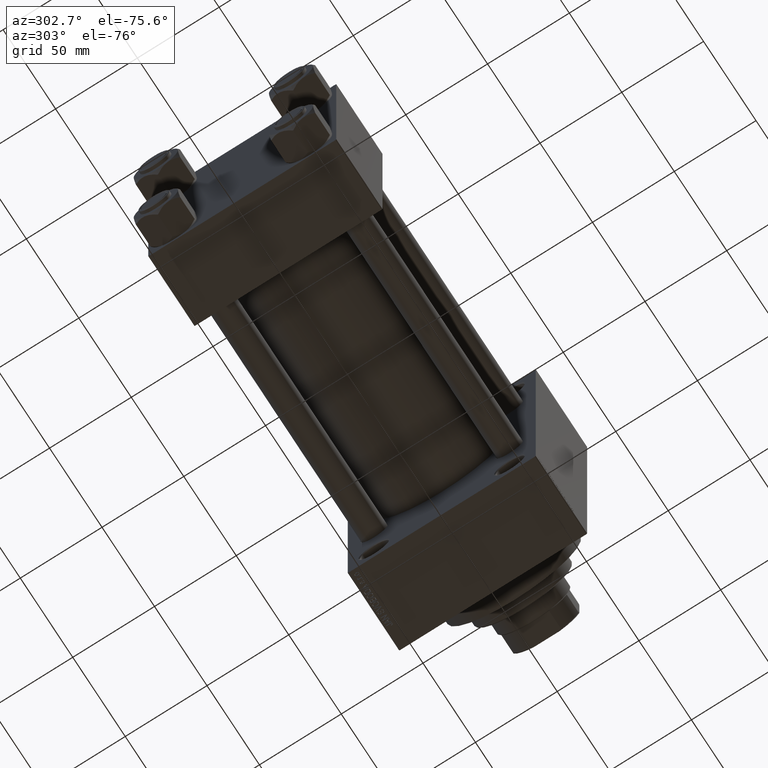
[diagram: clean part render]
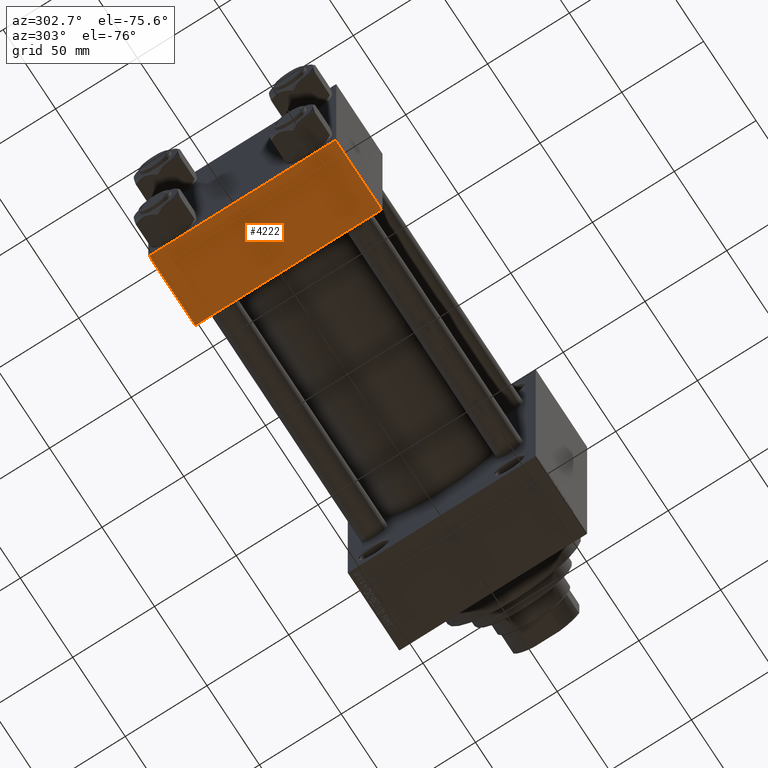
[diagram: same view with one face highlighted and labeled with its STEP entity id]
A machine part, auxiliary view. The second image highlights one B-rep face of the part: STEP entity #4222.
In plain terms, the highlighted planar face has unit normal (0, 0, -1).
Its self-contained STEP definition (entity closure, byte-faithful):
#305 = CARTESIAN_POINT ( 'NONE',  ( 0.000000000000000000, 57.50000000000000000, -57.49999999999999289 ) ) ;
#706 = ORIENTED_EDGE ( 'NONE', *, *, #9668, .T. ) ;
#1290 = VECTOR ( 'NONE', #2628, 1000.000000000000000 ) ;
#1948 = VERTEX_POINT ( 'NONE', #18695 ) ;
#2035 = LINE ( 'NONE', #27360, #14185 ) ;
#2628 = DIRECTION ( 'NONE',  ( -1.000000000000000000, 0.000000000000000000, 0.000000000000000000 ) ) ;
#2818 = CARTESIAN_POINT ( 'NONE',  ( 44.00000000000000000, 57.50000000000000000, -57.49999999999999289 ) ) ;
#4222 = ADVANCED_FACE ( 'NONE', ( #17298 ), #21153, .T. ) ;
#4307 = EDGE_LOOP ( 'NONE', ( #28987, #706, #12763, #26280 ) ) ;
#9144 = LINE ( 'NONE', #23844, #1290 ) ;
#9668 = EDGE_CURVE ( 'NONE', #1948, #36348, #39208, .T. ) ;
#12763 = ORIENTED_EDGE ( 'NONE', *, *, #16301, .T. ) ;
#14185 = VECTOR ( 'NONE', #24703, 1000.000000000000000 ) ;
#15013 = DIRECTION ( 'NONE',  ( 0.000000000000000000, -1.000000000000000000, -1.206764157201257291E-16 ) ) ;
#16301 = EDGE_CURVE ( 'NONE', #36348, #39387, #2035, .T. ) ;
#17298 = FACE_OUTER_BOUND ( 'NONE', #4307, .T. ) ;
#17527 = DIRECTION ( 'NONE',  ( 0.000000000000000000, 1.000000000000000000, 1.206764157201257291E-16 ) ) ;
#18452 = CARTESIAN_POINT ( 'NONE',  ( 44.00000000000000000, -57.00000000000001421, -57.50000000000000711 ) ) ;
#18695 = CARTESIAN_POINT ( 'NONE',  ( 0.000000000000000000, 57.00000000000002842, -57.49999999999999289 ) ) ;
#21153 = PLANE ( 'NONE',  #40009 ) ;
#21381 = DIRECTION ( 'NONE',  ( 0.000000000000000000, 1.206764157201257291E-16, -1.000000000000000000 ) ) ;
#22697 = LINE ( 'NONE', #305, #28478 ) ;
#23085 = CARTESIAN_POINT ( 'NONE',  ( 0.000000000000000000, -57.00000000000001421, -57.50000000000000711 ) ) ;
#23406 = EDGE_CURVE ( 'NONE', #39387, #47492, #9144, .T. ) ;
#23844 = CARTESIAN_POINT ( 'NONE',  ( 0.000000000000000000, -57.00000000000001421, -57.50000000000000711 ) ) ;
#24703 = DIRECTION ( 'NONE',  ( 0.000000000000000000, -1.000000000000000000, -1.206764157201257291E-16 ) ) ;
#24713 = VECTOR ( 'NONE', #32696, 1000.000000000000000 ) ;
#26280 = ORIENTED_EDGE ( 'NONE', *, *, #23406, .T. ) ;
#27360 = CARTESIAN_POINT ( 'NONE',  ( 44.00000000000000000, 57.50000000000000000, -57.49999999999999289 ) ) ;
#28478 = VECTOR ( 'NONE', #15013, 1000.000000000000000 ) ;
#28987 = ORIENTED_EDGE ( 'NONE', *, *, #44533, .F. ) ;
#32696 = DIRECTION ( 'NONE',  ( 1.000000000000000000, 0.000000000000000000, 0.000000000000000000 ) ) ;
#33389 = CARTESIAN_POINT ( 'NONE',  ( 44.00000000000000000, 57.00000000000002842, -57.49999999999999289 ) ) ;
#36348 = VERTEX_POINT ( 'NONE', #33389 ) ;
#39208 = LINE ( 'NONE', #42811, #24713 ) ;
#39387 = VERTEX_POINT ( 'NONE', #18452 ) ;
#40009 = AXIS2_PLACEMENT_3D ( 'NONE', #2818, #21381, #17527 ) ;
#42811 = CARTESIAN_POINT ( 'NONE',  ( 44.00000000000000000, 57.00000000000002842, -57.49999999999999289 ) ) ;
#44533 = EDGE_CURVE ( 'NONE', #1948, #47492, #22697, .T. ) ;
#47492 = VERTEX_POINT ( 'NONE', #23085 ) ;